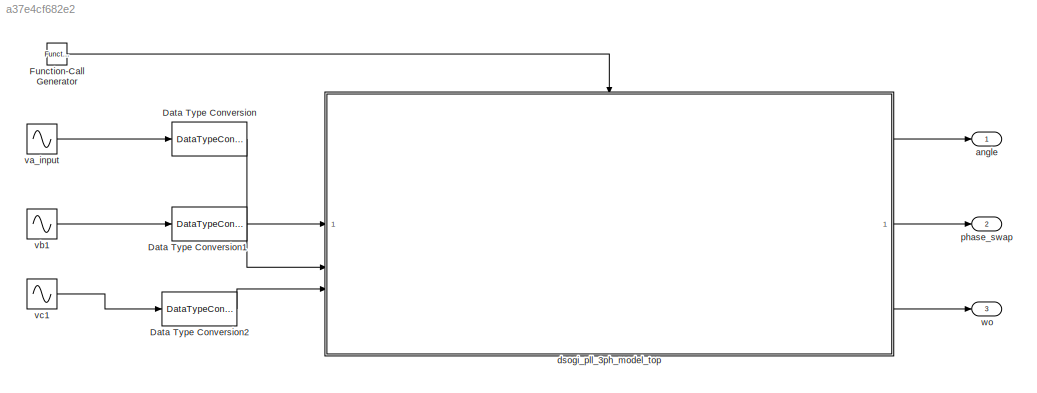
MODEL slx_a37e4cf682e2
KIND model
CONFIG AbsTol = auto
CONFIG EnableMultiTasking = off
CONFIG FixedStep = auto
CONFIG MaxStep = auto
CONFIG MinStep = auto
CONFIG RelTol = 1e-3
CONFIG SampleTimeConstraint = Unconstrained
CONFIG SolverName = FixedStepAuto
CONFIG StartTime = 0.0
CONFIG StopTime = 10.0
BLOCK [DataTypeConversion] Data Type Conversion
  OutDataTypeStr = single
  RndMeth = Floor
  SaturateOnIntegerOverflow = off
BLOCK [DataTypeConversion] Data Type Conversion1
  OutDataTypeStr = single
  RndMeth = Floor
  SaturateOnIntegerOverflow = off
BLOCK [DataTypeConversion] Data Type Conversion2
  OutDataTypeStr = single
  RndMeth = Floor
  SaturateOnIntegerOverflow = off
BLOCK [Reference] Function-Call Generator  REF=simulink/Ports &
Subsystems/Function-Call
Generator
  SourceBlock = simulink/Ports &\nSubsystems/Function-Call\nGenerator
  SourceType = Function-Call Generator
BLOCK [Outport] angle
BLOCK [ModelReference] dsogi_pll_3ph_model_top
  ModelNameDialog = dsogi_3phpll.slx
  ModelReferenceVersion = 1.15
  TriggerPortName = function
  TriggerPortStatesWhenEnabling = held
  TriggerPortTriggerType = function-call
BLOCK [Outport] phase_swap
  Port = 2
BLOCK [Sin] va_input
  Frequency = 2*pi*freq2
  Phase = ang2
  SampleTime = 1/10e3
BLOCK [Sin] vb1
  Frequency = 2*pi*freq2
  Phase = -pi*12/18+ang2
  SampleTime = 1/10e3
BLOCK [Sin] vc1
  Frequency = 2*pi*freq2
  Phase = pi*12/18+ang2
  SampleTime = 1/10e3
BLOCK [Outport] wo
  Port = 3
LINE Data Type Conversion1:1 -> dsogi_pll_3ph_model_top:2
LINE Data Type Conversion2:1 -> dsogi_pll_3ph_model_top:3
LINE Data Type Conversion:1 -> dsogi_pll_3ph_model_top:1
LINE Function-Call Generator:1 -> dsogi_pll_3ph_model_top:trigger
LINE dsogi_pll_3ph_model_top:1 -> angle:1
LINE dsogi_pll_3ph_model_top:2 -> phase_swap:1
LINE dsogi_pll_3ph_model_top:3 -> wo:1
LINE va_input:1 -> Data Type Conversion:1
LINE vb1:1 -> Data Type Conversion1:1
LINE vc1:1 -> Data Type Conversion2:1
